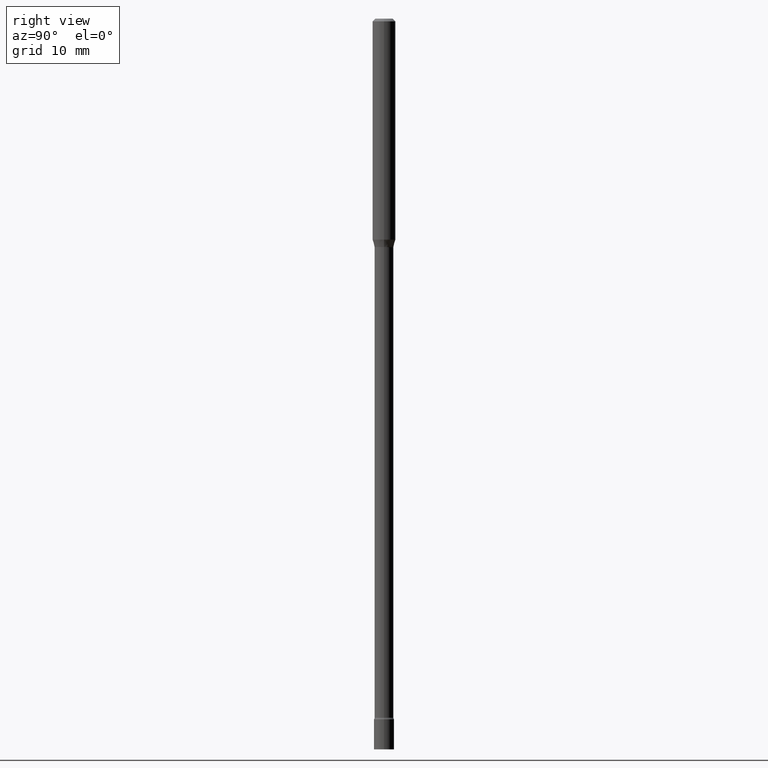
[diagram: clean part render]
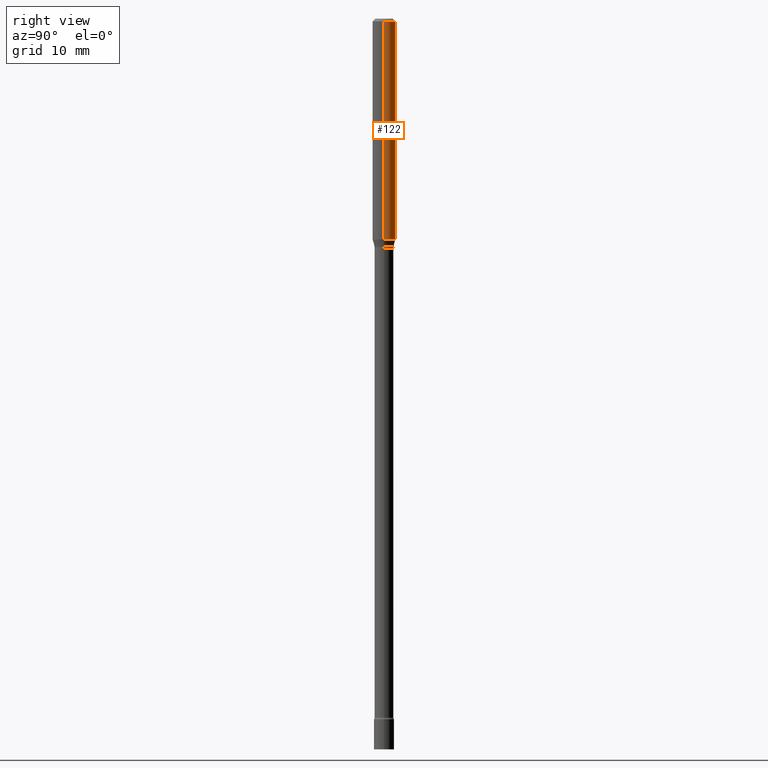
[diagram: same view with one face highlighted and labeled with its STEP entity id]
A machine part, right view. The second image highlights one B-rep face of the part: STEP entity #122.
In plain terms, the highlighted cylindrical surface (edge-blend (fillet) strip) has radius 1.5875 mm, axis along (-0, 0, 1).
Its self-contained STEP definition (entity closure, byte-faithful):
#10 = DIRECTION ( 'NONE',  ( 1.000000000000000000, -6.982962677686270655E-15, 0.000000000000000000 ) ) ;
#12 = CYLINDRICAL_SURFACE ( 'NONE', #278, 0.06250000000000000000 ) ;
#15 = AXIS2_PLACEMENT_3D ( 'NONE', #197, #253, #10 ) ;
#21 = CARTESIAN_POINT ( 'NONE',  ( -0.06250000000000000000, -3.779534297601264220E-15, -1.209693851278256016 ) ) ;
#31 = VECTOR ( 'NONE', #242, 39.37007874015748143 ) ;
#54 = EDGE_CURVE ( 'NONE', #344, #119, #118, .T. ) ;
#64 = LINE ( 'NONE', #428, #233 ) ;
#67 = ORIENTED_EDGE ( 'NONE', *, *, #187, .T. ) ;
#107 = DIRECTION ( 'NONE',  ( -2.445468806185136877E-29, 3.491481338843145188E-15, 1.000000000000000000 ) ) ;
#115 = CARTESIAN_POINT ( 'NONE',  ( -0.06250000000000000000, 4.440892098500626162E-16, -3.074334431409316114E-30 ) ) ;
#118 = LINE ( 'NONE', #115, #31 ) ;
#119 = VERTEX_POINT ( 'NONE', #286 ) ;
#122 = ADVANCED_FACE ( 'NONE', ( #461 ), #12, .T. ) ;
#134 = DIRECTION ( 'NONE',  ( -2.445468806185136597E-29, 3.491481338843145583E-15, 1.000000000000000000 ) ) ;
#147 = CIRCLE ( 'NONE', #232, 0.06250000000000000000 ) ;
#155 = CARTESIAN_POINT ( 'NONE',  ( 0.06250000000000000000, -4.660058674806718506E-15, -1.209693851278256016 ) ) ;
#187 = EDGE_CURVE ( 'NONE', #215, #344, #200, .T. ) ;
#197 = CARTESIAN_POINT ( 'NONE',  ( 2.958268578334937161E-29, -4.223623507451326836E-15, -1.209693851278256016 ) ) ;
#200 = CIRCLE ( 'NONE', #15, 0.06250000000000000000 ) ;
#213 = CARTESIAN_POINT ( 'NONE',  ( 3.668203209277712094E-31, -5.237222008264728876E-17, -0.01500000000000003067 ) ) ;
#215 = VERTEX_POINT ( 'NONE', #155 ) ;
#228 = ORIENTED_EDGE ( 'NONE', *, *, #308, .F. ) ;
#232 = AXIS2_PLACEMENT_3D ( 'NONE', #213, #134, #339 ) ;
#233 = VECTOR ( 'NONE', #107, 39.37007874015748143 ) ;
#242 = DIRECTION ( 'NONE',  ( -2.445468806185136877E-29, 3.491481338843145188E-15, 1.000000000000000000 ) ) ;
#248 = DIRECTION ( 'NONE',  ( -2.445468806185136597E-29, 3.491481338843145583E-15, 1.000000000000000000 ) ) ;
#253 = DIRECTION ( 'NONE',  ( -2.445468806185136597E-29, 3.491481338843145583E-15, 1.000000000000000000 ) ) ;
#278 = AXIS2_PLACEMENT_3D ( 'NONE', #367, #248, #287 ) ;
#286 = CARTESIAN_POINT ( 'NONE',  ( -0.06250000000000000000, -1.693908653916924342E-15, -0.01500000000000003067 ) ) ;
#287 = DIRECTION ( 'NONE',  ( 1.000000000000000000, -6.982962677686266711E-15, 4.876176775795935793E-29 ) ) ;
#308 = EDGE_CURVE ( 'NONE', #319, #119, #147, .T. ) ;
#313 = EDGE_LOOP ( 'NONE', ( #67, #512, #228, #450 ) ) ;
#319 = VERTEX_POINT ( 'NONE', #469 ) ;
#339 = DIRECTION ( 'NONE',  ( 1.000000000000000000, -6.982962677686266711E-15, 0.000000000000000000 ) ) ;
#344 = VERTEX_POINT ( 'NONE', #21 ) ;
#346 = EDGE_CURVE ( 'NONE', #215, #319, #64, .T. ) ;
#367 = CARTESIAN_POINT ( 'NONE',  ( 0.000000000000000000, 0.000000000000000000, 0.000000000000000000 ) ) ;
#428 = CARTESIAN_POINT ( 'NONE',  ( 0.06250000000000000000, -4.364351673553916694E-16, 3.047610484872459871E-30 ) ) ;
#450 = ORIENTED_EDGE ( 'NONE', *, *, #346, .F. ) ;
#461 = FACE_OUTER_BOUND ( 'NONE', #313, .T. ) ;
#469 = CARTESIAN_POINT ( 'NONE',  ( 0.06250000000000000000, -4.888073874380389458E-16, -0.01500000000000003067 ) ) ;
#512 = ORIENTED_EDGE ( 'NONE', *, *, #54, .T. ) ;